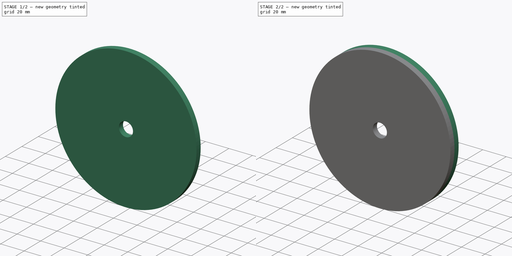
[diagram: build sequence overview — one tinted view per stage of 2, left to right]
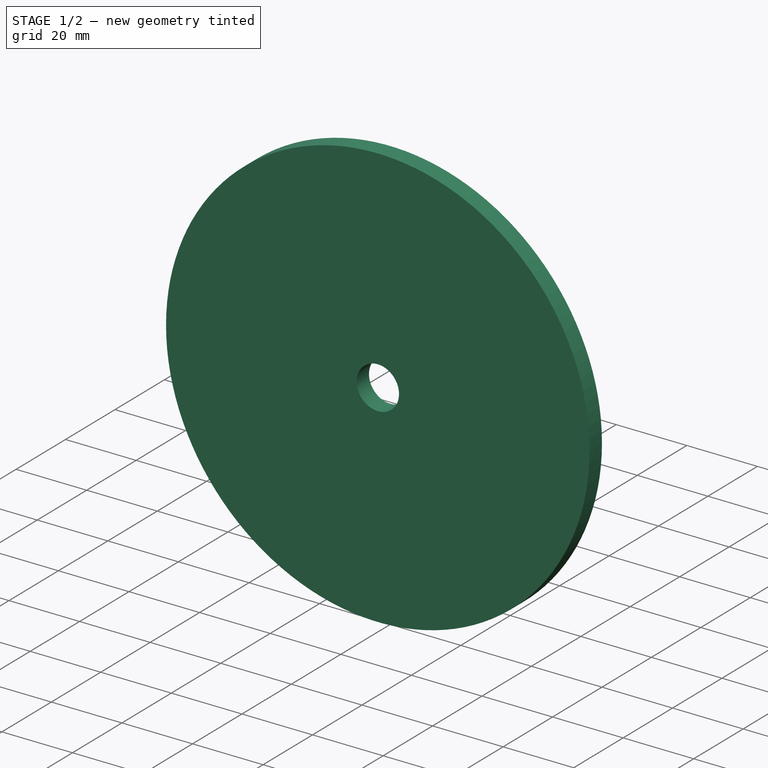
[diagram: stage 1 of 2 — iso view after this stage's code; geometry added in this stage tinted green]
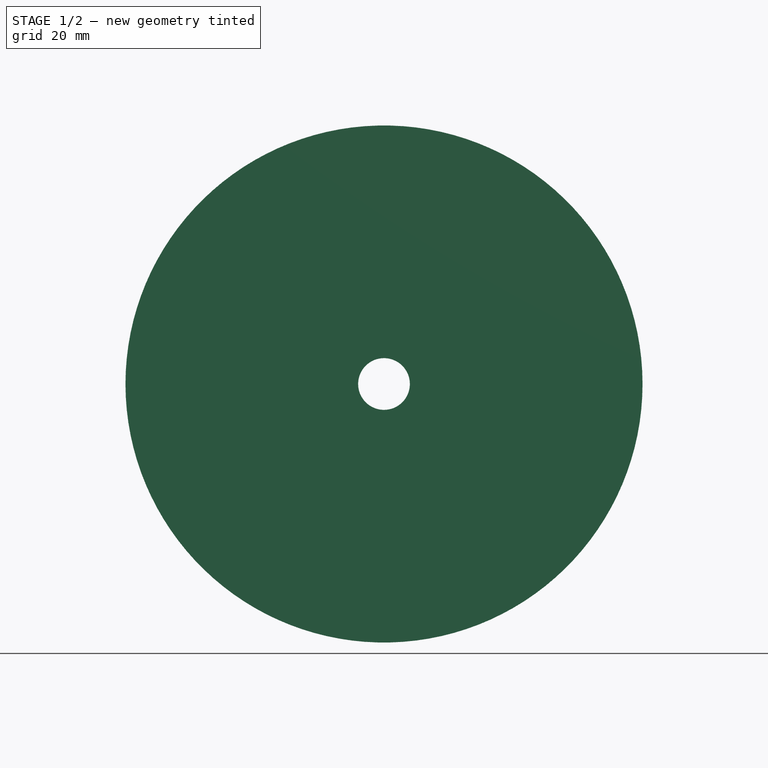
[diagram: stage 1 of 2 — front view after this stage's code; geometry added in this stage tinted green]
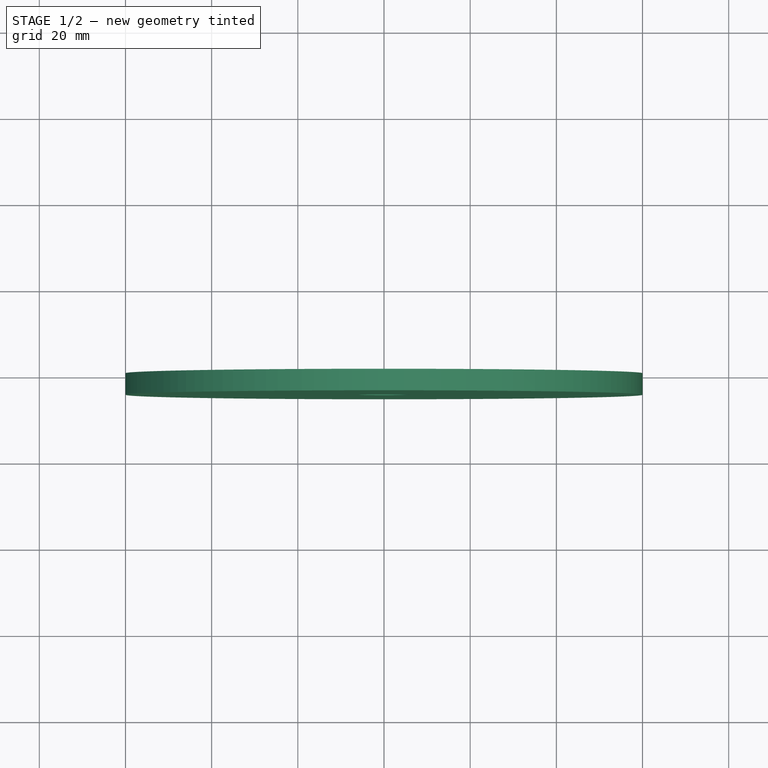
[diagram: stage 1 of 2 — top view after this stage's code; geometry added in this stage tinted green]
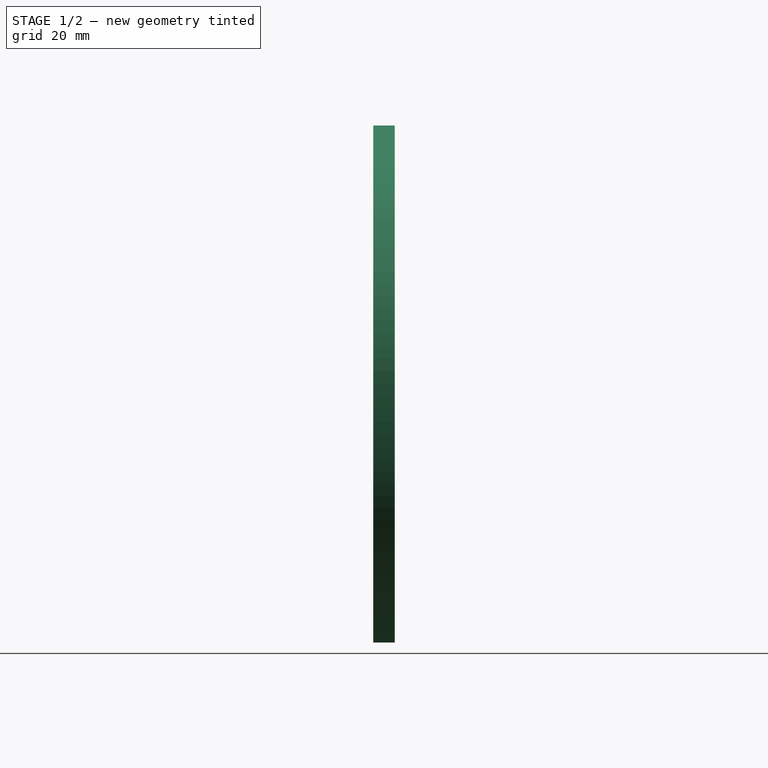
[diagram: stage 1 of 2 — right view after this stage's code; geometry added in this stage tinted green]
FCSTD DOCUMENT  (FreeCAD 0.17R13541 (Git))
Label: picammount
License: All rights reserved
LicenseURL: http://en.wikipedia.org/wiki/All_rights_reserved
objects: Sketcher::SketchObject×2, PartDesign::Pad×2, PartDesign::Body×1
note: 7 computed .brp shape members not serialized (recipe doc carries the construction recipe); baked Part::Feature solids carry a one-line shape summary decoded from their .brp

FEATURE [Sketcher::SketchObject] Sketch
  MapMode = 5
  Placement = pos=(0,0,0) rot=(1,0,0;1.5708rad)
  Support = -> [XZ_Plane]
  sketch-geometry (2):
    g0: Circle CenterX=0 CenterY=0 CenterZ=0 NormalX=0 NormalY=0 NormalZ=1 AngleXU=0 Radius=60
    g1: Circle CenterX=0 CenterY=0 CenterZ=0 NormalX=0 NormalY=0 NormalZ=1 AngleXU=0 Radius=6
  constraints (4):
    c: Radius(g0) = 60
    c: Radius(g1) = 6
    c: Coincident(g-1,g0)
    c: Coincident(g-1,g1)
FEATURE [PartDesign::Body] Body
  Origin = -> Origin
FEATURE [PartDesign::Pad] Pad  label="First"
  Length = 5
  Length2 = 100
  Placement = pos=(0,0,0) rot=(1,0,0;1.5708rad)
  Profile = -> Sketch
  Type = 0
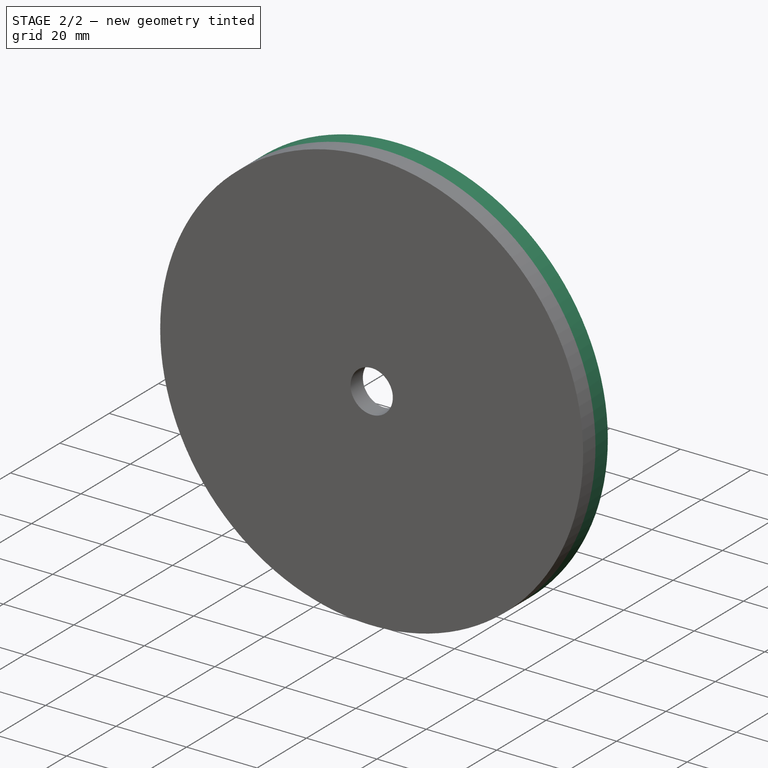
[diagram: stage 2 of 2 — iso view after this stage's code; geometry added in this stage tinted green]
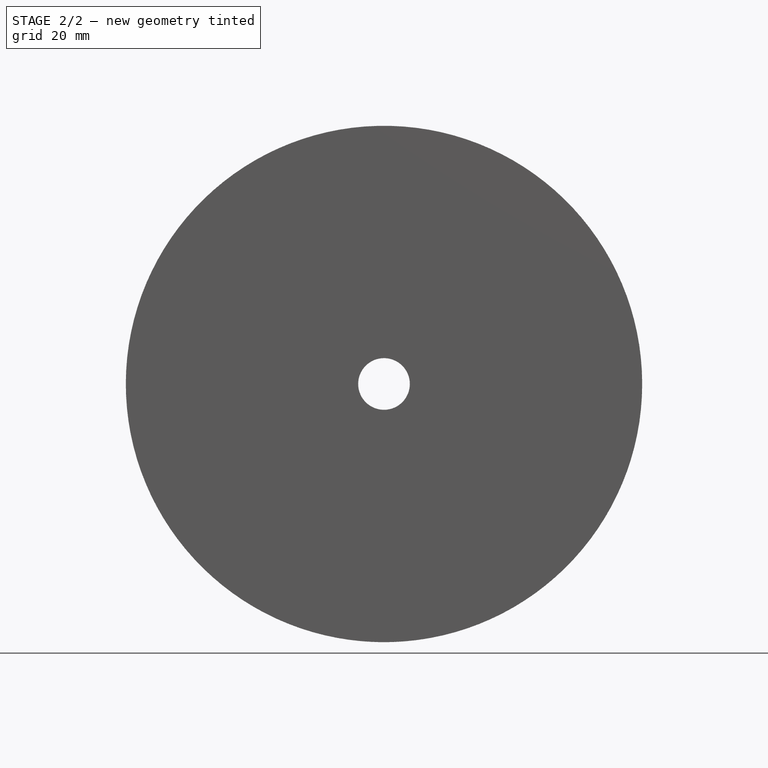
[diagram: stage 2 of 2 — front view after this stage's code; geometry added in this stage tinted green]
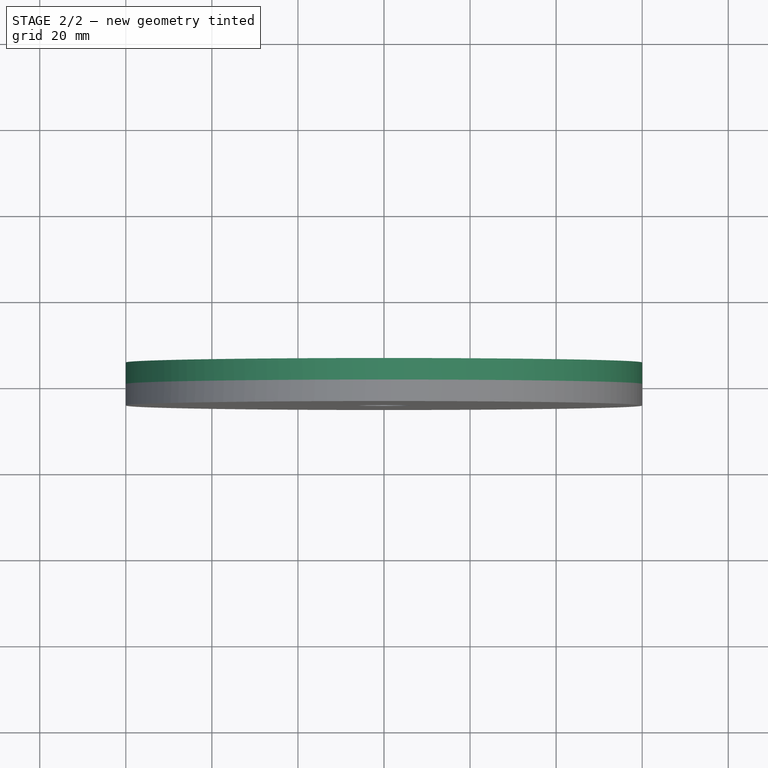
[diagram: stage 2 of 2 — top view after this stage's code; geometry added in this stage tinted green]
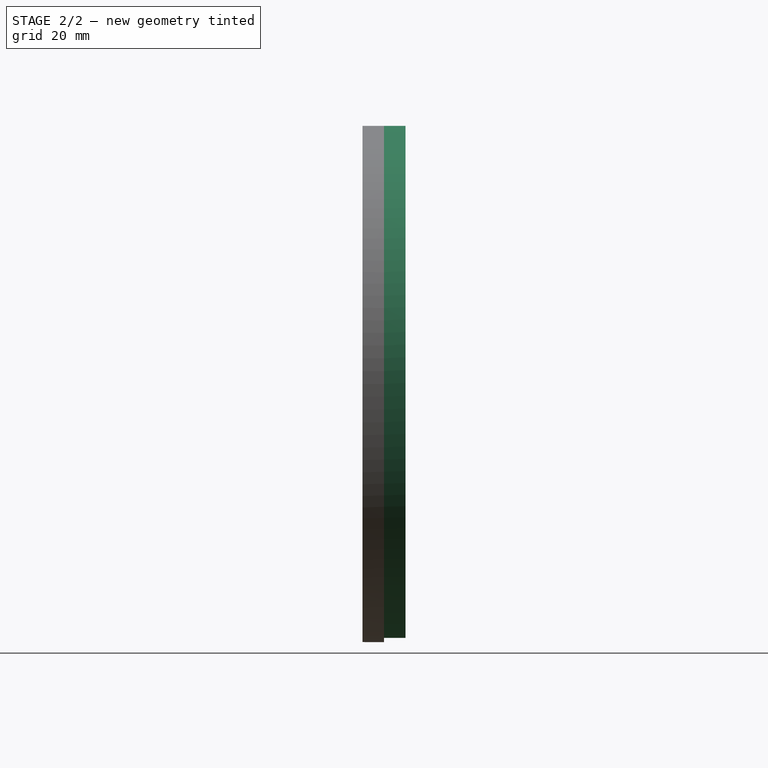
[diagram: stage 2 of 2 — right view after this stage's code; geometry added in this stage tinted green]
FEATURE [Sketcher::SketchObject] Sketch001
  MapMode = 5
  Placement = pos=(0,0,0) rot=(1,0,0;1.5708rad)
  Support = -> [XZ_Plane]
  sketch-geometry (9):
    g0: ArcOfCircle CenterX=0 CenterY=0 CenterZ=0 NormalX=0 NormalY=0 NormalZ=1 AngleXU=0 Radius=60 StartAngle=4.89522 EndAngle=10.8127
    g1: LineSegment StartX=-20 StartY=20.0053 StartZ=0 EndX=20 EndY=20.0053 EndZ=0
    g2: LineSegment StartX=20 StartY=20.0053 StartZ=0 EndX=20 EndY=-19.9947 EndZ=0
    g3: LineSegment StartX=-20 StartY=-16.0799 StartZ=0 EndX=-20 EndY=20.0053 EndZ=0
    g4: LineSegment StartX=10.9087 StartY=-19.9947 StartZ=0 EndX=10.9087 EndY=-59 EndZ=0
    g5: LineSegment StartX=-10.9087 StartY=-19.9947 StartZ=0 EndX=-10.9087 EndY=-59 EndZ=0
    g6: LineSegment StartX=20 StartY=-19.9947 StartZ=0 EndX=10.9087 EndY=-19.9947 EndZ=0
    g7: LineSegment StartX=-16.0319 StartY=-19.9947 StartZ=0 EndX=-10.9087 EndY=-19.9947 EndZ=0
    g8: ArcOfCircle CenterX=-15.9308 CenterY=-15.9237 CenterZ=0 NormalX=0 NormalY=0 NormalZ=1 AngleXU=0 Radius=4.07223 StartAngle=3.17996 EndAngle=4.68756
  constraints (23):
    c: Radius(g0) = 60
    c: Block(g0)
    c: Coincident(g1,g2)
    c: Coincident(g3,g1)
    c: Horizontal(g1)
    c: Vertical(g2)
    c: Vertical(g3)
    c: Symmetric(g1,g1,g-2)
    c: DistanceX(g1,g1) = 40
    c: DistanceY(g2,g2) = 40
    c: Vertical(g4)
    c: Vertical(g5)
    c: Symmetric(g4,g5,g-2)
    c: Coincident(g6,g2)
    c: Coincident(g6,g4)
    c: Horizontal(g6)
    c: Coincident(g7,g5)
    c: Horizontal(g7)
    c: Coincident(g0,g4)
    c: Coincident(g0,g5)
    c: Coincident(g7,g8)
    c: Coincident(g3,g8)
    c: Block(g8)
FEATURE [PartDesign::Pad] Pad001  label="Second"
  BaseFeature = -> Pad
  Length = 5
  Length2 = 100
  Placement = pos=(0,0,0) rot=(1,0,0;1.5708rad)
  Profile = -> Sketch001
  Reversed = true
  Type = 0
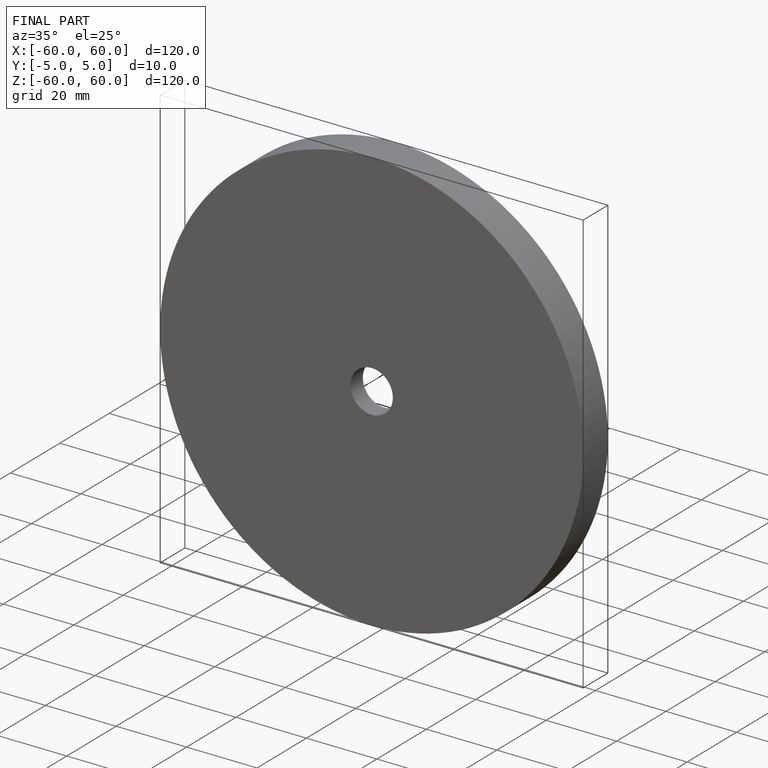
[diagram: finished part — iso view with bounding-box wireframe]
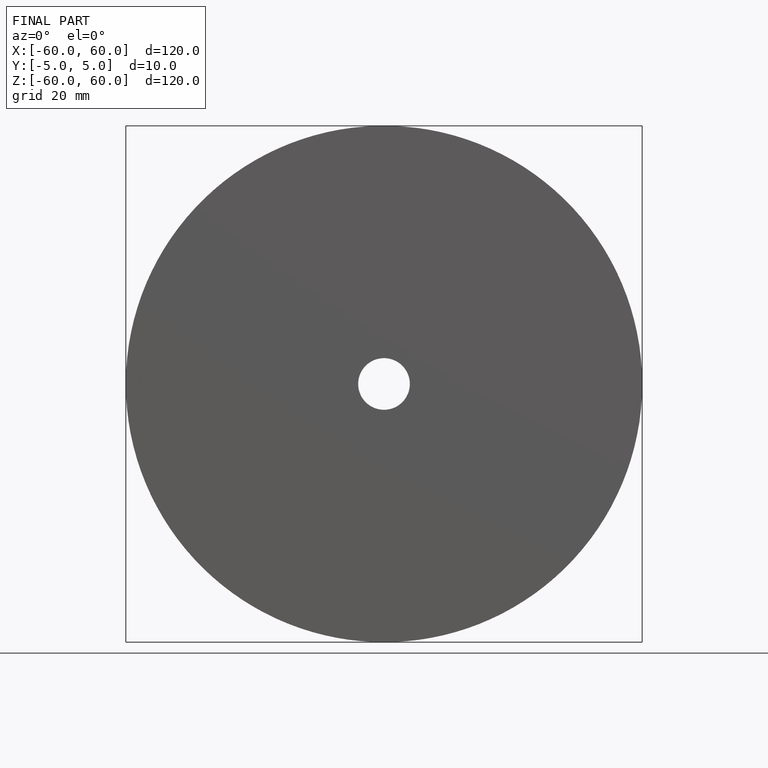
[diagram: finished part — front view with bounding-box wireframe]
